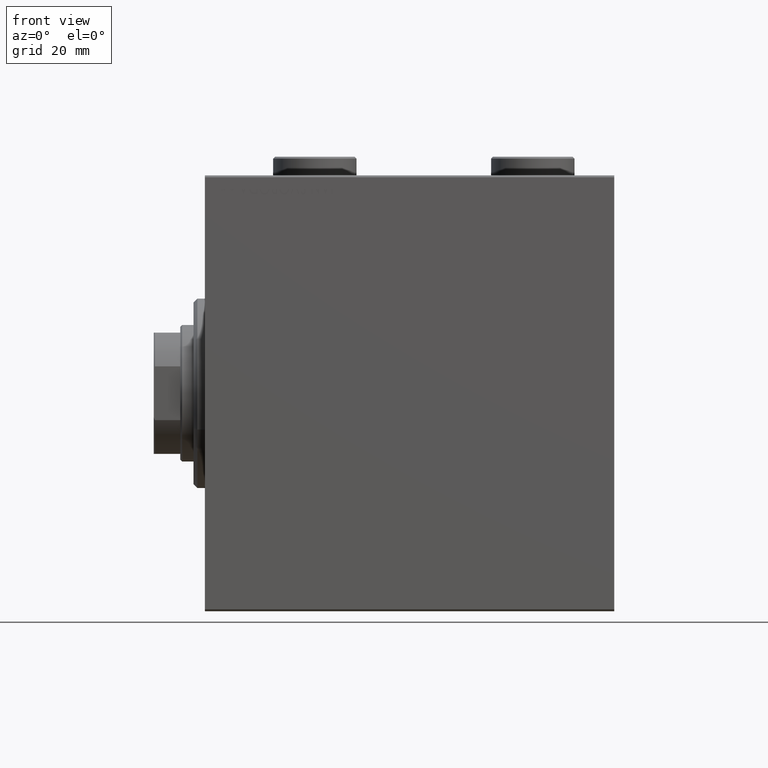
[diagram: clean part render]
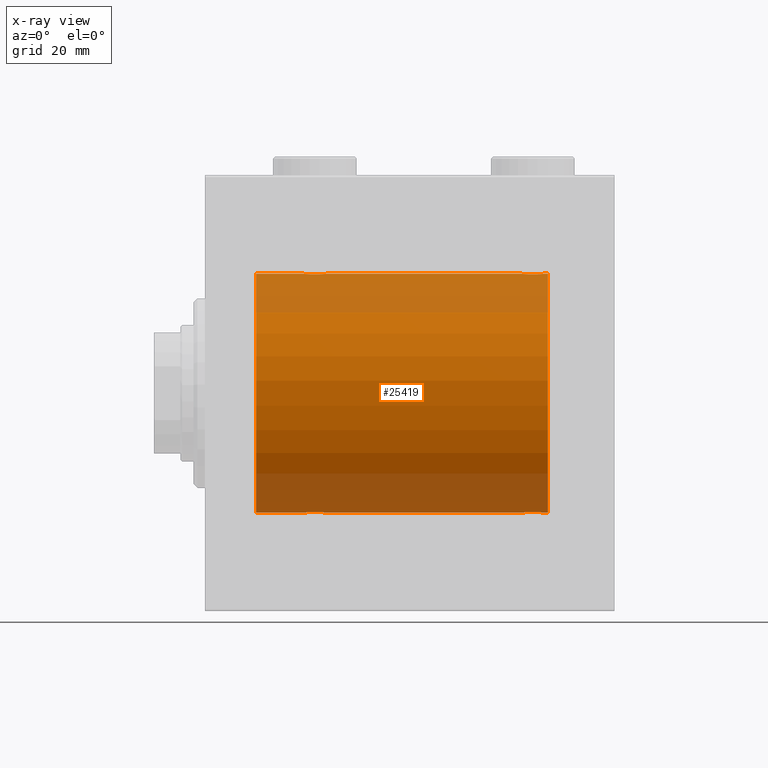
[diagram: x-ray — body ghosted, one internal face saturated and labeled with its STEP entity id]
A machine part, front view, then the same camera in x-ray: the body is ghosted and one INTERNAL B-rep face — a face not visible from any outside direction — is saturated and labeled: STEP entity #25419.
In plain terms, the highlighted cylindrical surface (partial cylindrical patch) has radius 31.5 mm, axis along (-1, -0, -0).
Its self-contained STEP definition (entity closure, byte-faithful):
#8 = VECTOR ( 'NONE', #1546, 1000.000000000000000 ) ;
#33 = VECTOR ( 'NONE', #10231, 1000.000000000000000 ) ;
#157 = EDGE_CURVE ( 'NONE', #39920, #19656, #8393, .T. ) ;
#229 = CARTESIAN_POINT ( 'NONE',  ( 29.77469094434372821, -2.904836261170106404, 31.36579955910873707 ) ) ;
#437 = CARTESIAN_POINT ( 'NONE',  ( 83.80470357640989221, -1.331741824817675113, -31.47235367475394341 ) ) ;
#808 = CARTESIAN_POINT ( 'NONE',  ( 27.17295774629732819, -2.387531469909775605, -31.40957782495775419 ) ) ;
#1010 = CARTESIAN_POINT ( 'NONE',  ( 89.50000000000000000, 3.857637396143758955E-15, -31.50000000000000000 ) ) ;
#1032 = B_SPLINE_CURVE_WITH_KNOTS ( 'NONE', 3,
 ( #8579, #43141, #4263, #32171, #25740, #36500, #39482, #36284, #11341, #14775, #4930, #8142, #35839, #18853, #42700, #15450, #26178, #22514, #1734, #32404, #18412, #1060, #36067, #29412, #5151, #43365, #12014, #22080, #15670, #18180, #25954, #7687 ),
 .UNSPECIFIED., .F., .F.,
 ( 4, 2, 2, 2, 2, 2, 2, 2, 2, 2, 2, 2, 2, 2, 2, 4 ),
 ( 0.009384682587134660428, 0.009971088165454063124, 0.01055749374377346582, 0.01114389932209286851, 0.01173030490041227121, 0.01231671047873167217, 0.01290311605705107313, 0.01348952163537047583, 0.01407592721368987679, 0.01466233279200927775, 0.01524873837032867871, 0.01583514394864807967, 0.01642154952696748410, 0.01700795510528688506, 0.01759436068360628602, 0.01876717184024507407 ),
 .UNSPECIFIED. ) ;
#1060 = CARTESIAN_POINT ( 'NONE',  ( 87.82865414687509542, -2.696917666262913738, 31.38442820068732075 ) ) ;
#1526 = CARTESIAN_POINT ( 'NONE',  ( 90.50000000000000000, 3.857637417314162689E-15, -31.50000000000000000 ) ) ;
#1546 = DIRECTION ( 'NONE',  ( -1.000000000000000000, -0.000000000000000000, -0.000000000000000000 ) ) ;
#1734 = CARTESIAN_POINT ( 'NONE',  ( 86.89114547339943329, -2.980809450819711159, 31.35867074198615967 ) ) ;
#2117 = EDGE_CURVE ( 'NONE', #13497, #36544, #7035, .T. ) ;
#3096 = CARTESIAN_POINT ( 'NONE',  ( 30.83043691487002746, -2.384935707362433988, -31.40977595730572958 ) ) ;
#3434 = CARTESIAN_POINT ( 'NONE',  ( 31.92020662950040943, -0.7905881588836116691, 31.49214662150068378 ) ) ;
#3737 = FACE_OUTER_BOUND ( 'NONE', #40065, .T. ) ;
#3770 = VECTOR ( 'NONE', #33092, 1000.000000000000000 ) ;
#3900 = CARTESIAN_POINT ( 'NONE',  ( 30.82704225370267892, -2.387531469909770276, 31.40957782495776129 ) ) ;
#4263 = CARTESIAN_POINT ( 'NONE',  ( 83.51898490608482462, -0.3904857149112073711, 31.49817436802766935 ) ) ;
#4604 = AXIS2_PLACEMENT_3D ( 'NONE', #13592, #41275, #44723 ) ;
#4642 = CARTESIAN_POINT ( 'NONE',  ( 26.00000000000000355, -2.117263226567934635E-23, 31.50000000000000000 ) ) ;
#4930 = CARTESIAN_POINT ( 'NONE',  ( 84.66956308512997964, -2.384935707362449087, 31.40977595730572958 ) ) ;
#5151 = CARTESIAN_POINT ( 'NONE',  ( 88.48143462873041187, -2.261012035264784892, 31.41905495618427935 ) ) ;
#5841 = DIRECTION ( 'NONE',  ( 0.000000000000000000, 0.000000000000000000, 1.000000000000000000 ) ) ;
#6004 = CARTESIAN_POINT ( 'NONE',  ( 32.00000000000000000, 3.857637396137448068E-15, -31.50000000000000000 ) ) ;
#6010 = CARTESIAN_POINT ( 'NONE',  ( 89.10417781274732363, -1.502389880412997147, -31.46458023642405877 ) ) ;
#6393 = EDGE_CURVE ( 'NONE', #15514, #19656, #22597, .T. ) ;
#6411 = CARTESIAN_POINT ( 'NONE',  ( 28.03055544341478722, -2.845838211243333138, 31.37127560316186603 ) ) ;
#6848 = CARTESIAN_POINT ( 'NONE',  ( 84.99901843703854354, -2.604888532024810299, -31.39229907792057972 ) ) ;
#6945 = EDGE_CURVE ( 'NONE', #8573, #13497, #34535, .T. ) ;
#6973 = CARTESIAN_POINT ( 'NONE',  ( 28.80417705560560648, -3.000152387858484371, -31.35680286115500337 ) ) ;
#7035 = LINE ( 'NONE', #41809, #33 ) ;
#7315 = CARTESIAN_POINT ( 'NONE',  ( 29.39114547339941552, -2.980809450819701834, 31.35867074198615967 ) ) ;
#7527 = CIRCLE ( 'NONE', #33097, 31.50000000000000000 ) ;
#7535 = CARTESIAN_POINT ( 'NONE',  ( 84.11753127733369695, -1.833765390051052657, -31.44700610425689291 ) ) ;
#7687 = CARTESIAN_POINT ( 'NONE',  ( 89.50000000000000000, -2.415502498297804861E-16, 31.50000000000000000 ) ) ;
#7854 = DIRECTION ( 'NONE',  ( 0.000000000000000000, 0.000000000000000000, 1.000000000000000000 ) ) ;
#8142 = CARTESIAN_POINT ( 'NONE',  ( 84.99543714992996968, -2.602826974226406076, 31.39247100434484850 ) ) ;
#8393 = LINE ( 'NONE', #22327, #39471 ) ;
#8573 = VERTEX_POINT ( 'NONE', #6004 ) ;
#8579 = CARTESIAN_POINT ( 'NONE',  ( 83.49999999999998579, -2.116947682205846230E-23, 31.50000000000000000 ) ) ;
#8745 = CARTESIAN_POINT ( 'NONE',  ( 90.50000000000000000, 0.000000000000000000, 31.50000000000000000 ) ) ;
#8992 = CARTESIAN_POINT ( 'NONE',  ( 89.40419450738056639, -0.7775502215293851327, -31.49099686045559565 ) ) ;
#9115 = VECTOR ( 'NONE', #16971, 1000.000000000000000 ) ;
#9268 = VERTEX_POINT ( 'NONE', #23477 ) ;
#9617 = CARTESIAN_POINT ( 'NONE',  ( 26.15339536257501507, -0.9669616078781987367, 31.48567319468626735 ) ) ;
#9834 = CARTESIAN_POINT ( 'NONE',  ( 26.61498557723073333, -1.830470878313877892, 31.44719957596828053 ) ) ;
#9871 = EDGE_CURVE ( 'NONE', #28377, #15282, #33847, .T. ) ;
#10163 = CARTESIAN_POINT ( 'NONE',  ( 29.39534111000094541, -2.980257240990050960, -31.35872356503797320 ) ) ;
#10231 = DIRECTION ( 'NONE',  ( -1.000000000000000000, -0.000000000000000000, -0.000000000000000000 ) ) ;
#10265 = CARTESIAN_POINT ( 'NONE',  ( 85.53484270189359506, -2.847307171789053903, -31.37114183851420179 ) ) ;
#10399 = CARTESIAN_POINT ( 'NONE',  ( 27.67134585312494011, -2.696917666262907520, -31.38442820068732786 ) ) ;
#11094 = CARTESIAN_POINT ( 'NONE',  ( 26.74175498096735026, -1.984587626072075617, -31.43772577203673180 ) ) ;
#11320 = CARTESIAN_POINT ( 'NONE',  ( 27.49901843703856130, -2.604888532024793424, -31.39229907792058683 ) ) ;
#11341 = CARTESIAN_POINT ( 'NONE',  ( 84.23904537543867832, -1.981494824113344322, 31.43792153503156683 ) ) ;
#12014 = CARTESIAN_POINT ( 'NONE',  ( 88.88246872266633147, -1.833765390051044442, 31.44700610425689291 ) ) ;
#12093 = EDGE_CURVE ( 'NONE', #16550, #27797, #7527, .T. ) ;
#12147 = EDGE_CURVE ( 'NONE', #36544, #9268, #32360, .T. ) ;
#12235 = VECTOR ( 'NONE', #35777, 1000.000000000000000 ) ;
#12361 = ORIENTED_EDGE ( 'NONE', *, *, #12093, .F. ) ;
#12362 = CARTESIAN_POINT ( 'NONE',  ( 26.00000000000000355, -6.595038141055444136E-15, -31.50000000000000000 ) ) ;
#12645 = CARTESIAN_POINT ( 'NONE',  ( 86.10885452660059514, -2.980809450819716933, -31.35867074198615967 ) ) ;
#12709 = DIRECTION ( 'NONE',  ( -1.000000000000000000, 0.000000000000000000, 0.000000000000000000 ) ) ;
#12794 = CARTESIAN_POINT ( 'NONE',  ( 32.00000000000000000, -3.906065418435112189E-16, 31.50000000000000000 ) ) ;
#13041 = CARTESIAN_POINT ( 'NONE',  ( 26.39582218725271900, -1.502389880413001144, 31.46458023642405166 ) ) ;
#13270 = CARTESIAN_POINT ( 'NONE',  ( 26.00000000000001066, -0.1958045626907463088, 31.50000000000000711 ) ) ;
#13375 = CARTESIAN_POINT ( 'NONE',  ( 31.38501442276926667, -1.830470878313872563, -31.44719957596828763 ) ) ;
#13497 = VERTEX_POINT ( 'NONE', #12362 ) ;
#13592 = CARTESIAN_POINT ( 'NONE',  ( 13.49999999999999822, 0.000000000000000000, 0.000000000000000000 ) ) ;
#13827 = CARTESIAN_POINT ( 'NONE',  ( 28.60885452660059869, -2.980809450819698725, -31.35867074198615256 ) ) ;
#13924 = CARTESIAN_POINT ( 'NONE',  ( 89.34660463742501690, -0.9669616078781998469, -31.48567319468627446 ) ) ;
#14161 = CARTESIAN_POINT ( 'NONE',  ( 84.51856537126954549, -2.261012035264799103, -31.41905495618427224 ) ) ;
#14182 = CARTESIAN_POINT ( 'NONE',  ( 30.32865414687508832, -2.696917666262907520, 31.38442820068731365 ) ) ;
#14296 = CARTESIAN_POINT ( 'NONE',  ( 31.90419450738055218, -0.7775502215293819130, -31.49099686045559565 ) ) ;
#14617 = CARTESIAN_POINT ( 'NONE',  ( 83.89807859560842473, -1.506272792558335683, -31.46439306106695710 ) ) ;
#14775 = CARTESIAN_POINT ( 'NONE',  ( 84.51539640075337445, -2.258226318633800300, 31.41925597582826413 ) ) ;
#15116 = AXIS2_PLACEMENT_3D ( 'NONE', #42399, #24304, #7854 ) ;
#15282 = VERTEX_POINT ( 'NONE', #25932 ) ;
#15450 = CARTESIAN_POINT ( 'NONE',  ( 86.10465888999905815, -2.980257240990066947, 31.35872356503798031 ) ) ;
#15514 = VERTEX_POINT ( 'NONE', #4642 ) ;
#15670 = CARTESIAN_POINT ( 'NONE',  ( 89.19529642359012200, -1.331741824817663122, 31.47235367475394341 ) ) ;
#15847 = CARTESIAN_POINT ( 'NONE',  ( 89.50000000000001421, -0.1958045626907434222, -31.50000000000000711 ) ) ;
#16067 = CARTESIAN_POINT ( 'NONE',  ( 86.89534111000095606, -2.980257240990069167, -31.35872356503797320 ) ) ;
#16550 = VERTEX_POINT ( 'NONE', #1526 ) ;
#16913 = CARTESIAN_POINT ( 'NONE',  ( 28.22118087357680238, -2.903733559410683895, 31.36590199989303684 ) ) ;
#16971 = DIRECTION ( 'NONE',  ( -1.000000000000000000, -0.000000000000000000, -0.000000000000000000 ) ) ;
#17009 = EDGE_CURVE ( 'NONE', #15282, #8573, #42154, .T. ) ;
#17023 = CARTESIAN_POINT ( 'NONE',  ( 29.96944455658523054, -2.845838211243329585, -31.37127560316186603 ) ) ;
#17568 = CARTESIAN_POINT ( 'NONE',  ( 84.67295774629731397, -2.387531469909792481, -31.40957782495775419 ) ) ;
#17824 = CARTESIAN_POINT ( 'NONE',  ( 31.25824501903266039, -1.984587626072074285, 31.43772577203672469 ) ) ;
#18180 = CARTESIAN_POINT ( 'NONE',  ( 89.42020662950039878, -0.7905881588836165541, 31.49214662150069088 ) ) ;
#18254 = CARTESIAN_POINT ( 'NONE',  ( 83.49999999999998579, -0.3965830985361872840, -31.50000000000000711 ) ) ;
#18299 = CARTESIAN_POINT ( 'NONE',  ( 90.50000000000000000, 0.000000000000000000, 31.50000000000000000 ) ) ;
#18412 = CARTESIAN_POINT ( 'NONE',  ( 87.46515729810640494, -2.847307171789044133, 31.37114183851420890 ) ) ;
#18768 = ORIENTED_EDGE ( 'NONE', *, *, #157, .F. ) ;
#18830 = CARTESIAN_POINT ( 'NONE',  ( 83.49999999999998579, -2.116947682205846230E-23, 31.50000000000000000 ) ) ;
#18853 = CARTESIAN_POINT ( 'NONE',  ( 85.53055544341479788, -2.845838211243349569, 31.37127560316188024 ) ) ;
#19479 = CARTESIAN_POINT ( 'NONE',  ( 89.48101509391514696, -0.3904857149112013204, -31.49817436802766224 ) ) ;
#19656 = VERTEX_POINT ( 'NONE', #12794 ) ;
#19763 = CARTESIAN_POINT ( 'NONE',  ( 90.50000000000000000, 0.000000000000000000, 31.50000000000000000 ) ) ;
#19931 = CARTESIAN_POINT ( 'NONE',  ( 88.33043691486999194, -2.384935707362452195, -31.40977595730572247 ) ) ;
#20158 = ORIENTED_EDGE ( 'NONE', *, *, #36362, .T. ) ;
#20217 = CARTESIAN_POINT ( 'NONE',  ( 90.50000000000000000, 0.000000000000000000, 0.000000000000000000 ) ) ;
#20443 = CARTESIAN_POINT ( 'NONE',  ( 30.98460359924664687, -2.258226318633781649, -31.41925597582825702 ) ) ;
#20678 = CARTESIAN_POINT ( 'NONE',  ( 32.00000000000001421, -0.1958045626907418957, -31.50000000000000711 ) ) ;
#20789 = CARTESIAN_POINT ( 'NONE',  ( 31.60192140439154684, -1.506272792558323470, 31.46439306106697131 ) ) ;
#20860 = ORIENTED_EDGE ( 'NONE', *, *, #35129, .T. ) ;
#20894 = CARTESIAN_POINT ( 'NONE',  ( 28.22530905565627179, -2.904836261170103739, -31.36579955910872286 ) ) ;
#21130 = CARTESIAN_POINT ( 'NONE',  ( 31.84660463742499559, -0.9669616078781945179, -31.48567319468626735 ) ) ;
#21230 = CARTESIAN_POINT ( 'NONE',  ( 83.57979337049955859, -0.7905881588836273233, -31.49214662150069088 ) ) ;
#21252 = CARTESIAN_POINT ( 'NONE',  ( 32.00000000000000000, -3.906065418435112189E-16, 31.50000000000000000 ) ) ;
#21467 = CARTESIAN_POINT ( 'NONE',  ( 84.24175498096732895, -1.984587626072091160, -31.43772577203671048 ) ) ;
#21785 = CYLINDRICAL_SURFACE ( 'NONE', #15116, 31.50000000000000000 ) ;
#22080 = CARTESIAN_POINT ( 'NONE',  ( 89.10192140439151842, -1.506272792558327245, 31.46439306106695710 ) ) ;
#22327 = CARTESIAN_POINT ( 'NONE',  ( 90.50000000000000000, 0.000000000000000000, 31.50000000000000000 ) ) ;
#22514 = CARTESIAN_POINT ( 'NONE',  ( 86.69582294439439352, -3.000152387858496805, 31.35680286115500337 ) ) ;
#22560 = CARTESIAN_POINT ( 'NONE',  ( 90.50000000000000000, 3.857637417314162689E-15, -31.50000000000000000 ) ) ;
#22597 = B_SPLINE_CURVE_WITH_KNOTS ( 'NONE', 3,
 ( #33884, #13270, #27230, #30432, #9617, #33434, #13041, #9834, #23777, #27001, #37754, #40955, #23556, #6411, #16913, #30890, #35010, #38666, #7315, #229, #35255, #14182, #41627, #3900, #31575, #17824, #45063, #20789, #24686, #3434, #34782, #21252 ),
 .UNSPECIFIED., .F., .F.,
 ( 4, 2, 2, 2, 2, 2, 2, 2, 2, 2, 2, 2, 2, 2, 2, 4 ),
 ( 0.009384682587134639611, 0.009971088165454038837, 0.01055749374377343980, 0.01114389932209284076, 0.01173030490041223999, 0.01231671047873163921, 0.01290311605705104017, 0.01348952163537044113, 0.01407592721368984036, 0.01466233279200923958, 0.01524873837032864055, 0.01583514394864804151, 0.01642154952696744247, 0.01700795510528683996, 0.01759436068360624092, 0.01876717184024503243 ),
 .UNSPECIFIED. ) ;
#23477 = CARTESIAN_POINT ( 'NONE',  ( 13.49999999999999822, 0.000000000000000000, 31.50000000000000000 ) ) ;
#23556 = CARTESIAN_POINT ( 'NONE',  ( 27.66760041900836953, -2.695056442718533507, 31.38458855656185875 ) ) ;
#23777 = CARTESIAN_POINT ( 'NONE',  ( 26.73904537543869608, -1.981494824113328779, 31.43792153503155973 ) ) ;
#24113 = CARTESIAN_POINT ( 'NONE',  ( 29.20046458974095671, -2.999845816735294157, -31.35683219171744085 ) ) ;
#24290 = CARTESIAN_POINT ( 'NONE',  ( 90.50000000000000000, 3.857637417314162689E-15, -31.50000000000000000 ) ) ;
#24304 = DIRECTION ( 'NONE',  ( -1.000000000000000000, -0.000000000000000000, -0.000000000000000000 ) ) ;
#24345 = CARTESIAN_POINT ( 'NONE',  ( 32.00000000000000000, 3.857637396137448068E-15, -31.50000000000000000 ) ) ;
#24686 = CARTESIAN_POINT ( 'NONE',  ( 31.69529642359010424, -1.331741824817659348, 31.47235367475393630 ) ) ;
#25272 = CARTESIAN_POINT ( 'NONE',  ( 26.30470357640989576, -1.331741824817665343, -31.47235367475392920 ) ) ;
#25419 = ADVANCED_FACE ( 'NONE', ( #3737 ), #21785, .F. ) ;
#25456 = ORIENTED_EDGE ( 'NONE', *, *, #6393, .T. ) ;
#25495 = CARTESIAN_POINT ( 'NONE',  ( 26.61753127733371116, -1.833765390051047106, -31.44700610425690002 ) ) ;
#25740 = CARTESIAN_POINT ( 'NONE',  ( 83.65339536257499731, -0.9669616078782070634, 31.48567319468626735 ) ) ;
#25932 = CARTESIAN_POINT ( 'NONE',  ( 83.49999999999998579, -1.354660151018645615E-14, -31.50000000000000000 ) ) ;
#25954 = CARTESIAN_POINT ( 'NONE',  ( 89.49999999999998579, -0.3965830985361750161, 31.50000000000000000 ) ) ;
#25983 = DIRECTION ( 'NONE',  ( -1.000000000000000000, -0.000000000000000000, -0.000000000000000000 ) ) ;
#26178 = CARTESIAN_POINT ( 'NONE',  ( 86.29953541025901131, -2.999845816735307036, 31.35683219171744796 ) ) ;
#26199 = ORIENTED_EDGE ( 'NONE', *, *, #9871, .T. ) ;
#26368 = CARTESIAN_POINT ( 'NONE',  ( 88.00456285007000190, -2.602826974226410961, -31.39247100434486271 ) ) ;
#26818 = CARTESIAN_POINT ( 'NONE',  ( 89.19714238836702691, -1.328004386210309251, -31.47251238182141719 ) ) ;
#27001 = CARTESIAN_POINT ( 'NONE',  ( 27.01539640075335669, -2.258226318633785201, 31.41925597582825702 ) ) ;
#27230 = CARTESIAN_POINT ( 'NONE',  ( 26.01898490608483527, -0.3904857149112033743, 31.49817436802766935 ) ) ;
#27487 = EDGE_CURVE ( 'NONE', #15514, #9268, #40085, .T. ) ;
#27560 = CARTESIAN_POINT ( 'NONE',  ( 29.77881912642320827, -2.903733559410679455, -31.36590199989303684 ) ) ;
#27658 = CARTESIAN_POINT ( 'NONE',  ( 85.72530905565625403, -2.904836261170121947, -31.36579955910872286 ) ) ;
#27797 = VERTEX_POINT ( 'NONE', #18299 ) ;
#28377 = VERTEX_POINT ( 'NONE', #1010 ) ;
#28809 = CARTESIAN_POINT ( 'NONE',  ( 83.49999999999998579, -1.354660151018645615E-14, -31.50000000000000000 ) ) ;
#29157 = CARTESIAN_POINT ( 'NONE',  ( 26.39807859560848158, -1.506272792558332130, -31.46439306106697131 ) ) ;
#29412 = CARTESIAN_POINT ( 'NONE',  ( 88.32704225370268603, -2.387531469909779158, 31.40957782495775419 ) ) ;
#29815 = CARTESIAN_POINT ( 'NONE',  ( 88.76095462456133589, -1.981494824113334774, -31.43792153503157394 ) ) ;
#30001 = ORIENTED_EDGE ( 'NONE', *, *, #17009, .T. ) ;
#30036 = CARTESIAN_POINT ( 'NONE',  ( 86.70046458974097447, -2.999845816735310589, -31.35683219171744796 ) ) ;
#30339 = ORIENTED_EDGE ( 'NONE', *, *, #2117, .T. ) ;
#30432 = CARTESIAN_POINT ( 'NONE',  ( 26.09580549261944427, -0.7775502215293862429, 31.49099686045558144 ) ) ;
#30477 = CARTESIAN_POINT ( 'NONE',  ( 87.27881912642318696, -2.903733559410696774, -31.36590199989303684 ) ) ;
#30661 = CARTESIAN_POINT ( 'NONE',  ( 89.50000000000000000, -2.415502498297804861E-16, 31.50000000000000000 ) ) ;
#30890 = CARTESIAN_POINT ( 'NONE',  ( 28.60465888999904749, -2.980257240990054513, 31.35872356503797320 ) ) ;
#31575 = CARTESIAN_POINT ( 'NONE',  ( 30.98143462873041898, -2.261012035264782227, 31.41905495618429356 ) ) ;
#31883 = CARTESIAN_POINT ( 'NONE',  ( 13.49999999999999822, 3.857637417314162689E-15, -31.50000000000000000 ) ) ;
#31988 = LINE ( 'NONE', #22560, #8 ) ;
#32149 = CARTESIAN_POINT ( 'NONE',  ( 26.07979337049960478, -0.7905881588836203289, -31.49214662150069088 ) ) ;
#32171 = CARTESIAN_POINT ( 'NONE',  ( 83.59580549261943361, -0.7775502215293907948, 31.49099686045558855 ) ) ;
#32360 = CIRCLE ( 'NONE', #4604, 31.50000000000000000 ) ;
#32404 = CARTESIAN_POINT ( 'NONE',  ( 87.27469094434374597, -2.904836261170115730, 31.36579955910872997 ) ) ;
#32821 = CARTESIAN_POINT ( 'NONE',  ( 26.00000000000000355, -6.595038141055444136E-15, -31.50000000000000000 ) ) ;
#33092 = DIRECTION ( 'NONE',  ( -1.000000000000000000, -0.000000000000000000, -0.000000000000000000 ) ) ;
#33097 = AXIS2_PLACEMENT_3D ( 'NONE', #20217, #12709, #5841 ) ;
#33434 = CARTESIAN_POINT ( 'NONE',  ( 26.30285761163300151, -1.328004386210305698, 31.47251238182140298 ) ) ;
#33478 = CARTESIAN_POINT ( 'NONE',  ( 87.46944455658521633, -2.845838211243347793, -31.37127560316186603 ) ) ;
#33699 = CARTESIAN_POINT ( 'NONE',  ( 88.88501442276927378, -1.830470878313876781, -31.44719957596828763 ) ) ;
#33847 = B_SPLINE_CURVE_WITH_KNOTS ( 'NONE', 3,
 ( #40550, #15847, #19479, #8992, #13924, #26818, #6010, #33699, #29815, #43759, #19931, #26368, #36908, #33478, #30477, #16067, #30036, #44433, #12645, #27658, #10265, #38192, #6848, #17568, #14161, #21467, #7535, #14617, #437, #21230, #18254, #28809 ),
 .UNSPECIFIED., .F., .F.,
 ( 4, 2, 2, 2, 2, 2, 2, 2, 2, 2, 2, 2, 2, 2, 2, 4 ),
 ( 0.009384682587134677775, 0.009971088165454078736, 0.01055749374377348143, 0.01114389932209288239, 0.01173030490041228509, 0.01231671047873168778, 0.01290311605705108874, 0.01348952163537048970, 0.01407592721368989067, 0.01466233279200929336, 0.01524873837032869606, 0.01583514394864809702, 0.01642154952696749798, 0.01700795510528689894, 0.01759436068360629990, 0.01876717184024510529 ),
 .UNSPECIFIED. ) ;
#33884 = CARTESIAN_POINT ( 'NONE',  ( 26.00000000000000355, -2.117263226567934635E-23, 31.50000000000000000 ) ) ;
#33997 = VERTEX_POINT ( 'NONE', #30661 ) ;
#34216 = CARTESIAN_POINT ( 'NONE',  ( 31.60417781274729165, -1.502389880412996259, -31.46458023642406587 ) ) ;
#34440 = CARTESIAN_POINT ( 'NONE',  ( 30.50456285006998769, -2.602826974226392309, -31.39247100434485560 ) ) ;
#34535 = B_SPLINE_CURVE_WITH_KNOTS ( 'NONE', 3,
 ( #24345, #20678, #34669, #14296, #21130, #35132, #34216, #13375, #45174, #20443, #3096, #34440, #41512, #17023, #27560, #10163, #24113, #6973, #13827, #20894, #41747, #10399, #11320, #808, #43117, #11094, #25495, #29157, #25272, #32149, #39240, #32821 ),
 .UNSPECIFIED., .F., .F.,
 ( 4, 2, 2, 2, 2, 2, 2, 2, 2, 2, 2, 2, 2, 2, 2, 4 ),
 ( 0.009384682587134662163, 0.009971088165454068328, 0.01055749374377347449, 0.01114389932209288066, 0.01173030490041228682, 0.01231671047873168605, 0.01290311605705108527, 0.01348952163537048277, 0.01407592721368988199, 0.01466233279200928122, 0.01524873837032868044, 0.01583514394864807967, 0.01642154952696747716, 0.01700795510528687812, 0.01759436068360627908, 0.01876717184024507407 ),
 .UNSPECIFIED. ) ;
#34669 = CARTESIAN_POINT ( 'NONE',  ( 31.98101509391517538, -0.3904857149111993775, -31.49817436802766224 ) ) ;
#34782 = CARTESIAN_POINT ( 'NONE',  ( 32.00000000000001421, -0.3965830985361748495, 31.50000000000001421 ) ) ;
#35010 = CARTESIAN_POINT ( 'NONE',  ( 28.79953541025904684, -2.999845816735297266, 31.35683219171744796 ) ) ;
#35129 = EDGE_CURVE ( 'NONE', #16550, #28377, #31988, .T. ) ;
#35132 = CARTESIAN_POINT ( 'NONE',  ( 31.69714238836700915, -1.328004386210301480, -31.47251238182141009 ) ) ;
#35255 = CARTESIAN_POINT ( 'NONE',  ( 29.96515729810641204, -2.847307171789037028, 31.37114183851420890 ) ) ;
#35777 = DIRECTION ( 'NONE',  ( -1.000000000000000000, -0.000000000000000000, -0.000000000000000000 ) ) ;
#35839 = CARTESIAN_POINT ( 'NONE',  ( 85.16760041900836598, -2.695056442718549494, 31.38458855656185875 ) ) ;
#36067 = CARTESIAN_POINT ( 'NONE',  ( 88.00098156296147067, -2.604888532024798309, 31.39229907792057972 ) ) ;
#36284 = CARTESIAN_POINT ( 'NONE',  ( 84.11498557723071201, -1.830470878313887884, 31.44719957596828053 ) ) ;
#36362 = EDGE_CURVE ( 'NONE', #39920, #33997, #1032, .T. ) ;
#36500 = CARTESIAN_POINT ( 'NONE',  ( 83.80285761163298730, -1.328004386210315024, 31.47251238182141719 ) ) ;
#36544 = VERTEX_POINT ( 'NONE', #31883 ) ;
#36908 = CARTESIAN_POINT ( 'NONE',  ( 87.83239958099163402, -2.695056442718546830, -31.38458855656186230 ) ) ;
#37409 = LINE ( 'NONE', #19763, #3770 ) ;
#37754 = CARTESIAN_POINT ( 'NONE',  ( 27.16956308512997964, -2.384935707362437096, 31.40977595730572958 ) ) ;
#38192 = CARTESIAN_POINT ( 'NONE',  ( 85.17134585312489037, -2.696917666262924840, -31.38442820068731365 ) ) ;
#38293 = ORIENTED_EDGE ( 'NONE', *, *, #6945, .T. ) ;
#38666 = CARTESIAN_POINT ( 'NONE',  ( 29.19582294439440417, -3.000152387858486147, 31.35680286115499626 ) ) ;
#39240 = CARTESIAN_POINT ( 'NONE',  ( 26.00000000000000355, -0.3965830985361813443, -31.50000000000000711 ) ) ;
#39471 = VECTOR ( 'NONE', #25983, 1000.000000000000000 ) ;
#39482 = CARTESIAN_POINT ( 'NONE',  ( 83.89582218725269058, -1.502389880413010026, 31.46458023642405877 ) ) ;
#39920 = VERTEX_POINT ( 'NONE', #18830 ) ;
#40065 = EDGE_LOOP ( 'NONE', ( #12361, #20860, #26199, #30001, #38293, #30339, #43575, #42624, #25456, #18768, #20158, #43820 ) ) ;
#40085 = LINE ( 'NONE', #8745, #12235 ) ;
#40550 = CARTESIAN_POINT ( 'NONE',  ( 89.50000000000000000, 3.857637396143758955E-15, -31.50000000000000000 ) ) ;
#40955 = CARTESIAN_POINT ( 'NONE',  ( 27.49543714993000876, -2.602826974226395862, 31.39247100434485560 ) ) ;
#41275 = DIRECTION ( 'NONE',  ( -1.000000000000000000, 0.000000000000000000, 0.000000000000000000 ) ) ;
#41512 = CARTESIAN_POINT ( 'NONE',  ( 30.33239958099164824, -2.695056442718529954, -31.38458855656185875 ) ) ;
#41627 = CARTESIAN_POINT ( 'NONE',  ( 30.50098156296146712, -2.604888532024788983, 31.39229907792058683 ) ) ;
#41747 = CARTESIAN_POINT ( 'NONE',  ( 28.03484270189360217, -2.847307171789034808, -31.37114183851420179 ) ) ;
#41809 = CARTESIAN_POINT ( 'NONE',  ( 90.50000000000000000, 3.857637417314162689E-15, -31.50000000000000000 ) ) ;
#42154 = LINE ( 'NONE', #24290, #9115 ) ;
#42399 = CARTESIAN_POINT ( 'NONE',  ( 90.50000000000000000, 0.000000000000000000, 0.000000000000000000 ) ) ;
#42624 = ORIENTED_EDGE ( 'NONE', *, *, #27487, .F. ) ;
#42700 = CARTESIAN_POINT ( 'NONE',  ( 85.72118087357682725, -2.903733559410697662, 31.36590199989305106 ) ) ;
#42872 = EDGE_CURVE ( 'NONE', #27797, #33997, #37409, .T. ) ;
#43117 = CARTESIAN_POINT ( 'NONE',  ( 27.01856537126958813, -2.261012035264781783, -31.41905495618428645 ) ) ;
#43141 = CARTESIAN_POINT ( 'NONE',  ( 83.49999999999998579, -0.1958045626907495562, 31.50000000000000000 ) ) ;
#43365 = CARTESIAN_POINT ( 'NONE',  ( 88.75824501903265684, -1.984587626072075617, 31.43772577203671759 ) ) ;
#43575 = ORIENTED_EDGE ( 'NONE', *, *, #12147, .T. ) ;
#43759 = CARTESIAN_POINT ( 'NONE',  ( 88.48460359924666818, -2.258226318633792751, -31.41925597582826413 ) ) ;
#43820 = ORIENTED_EDGE ( 'NONE', *, *, #42872, .F. ) ;
#44433 = CARTESIAN_POINT ( 'NONE',  ( 86.30417705560559227, -3.000152387858500802, -31.35680286115499626 ) ) ;
#44723 = DIRECTION ( 'NONE',  ( 0.000000000000000000, 0.000000000000000000, 1.000000000000000000 ) ) ;
#45063 = CARTESIAN_POINT ( 'NONE',  ( 31.38246872266631371, -1.833765390051040223, 31.44700610425690712 ) ) ;
#45174 = CARTESIAN_POINT ( 'NONE',  ( 31.26095462456130747, -1.981494824113326114, -31.43792153503156683 ) ) ;